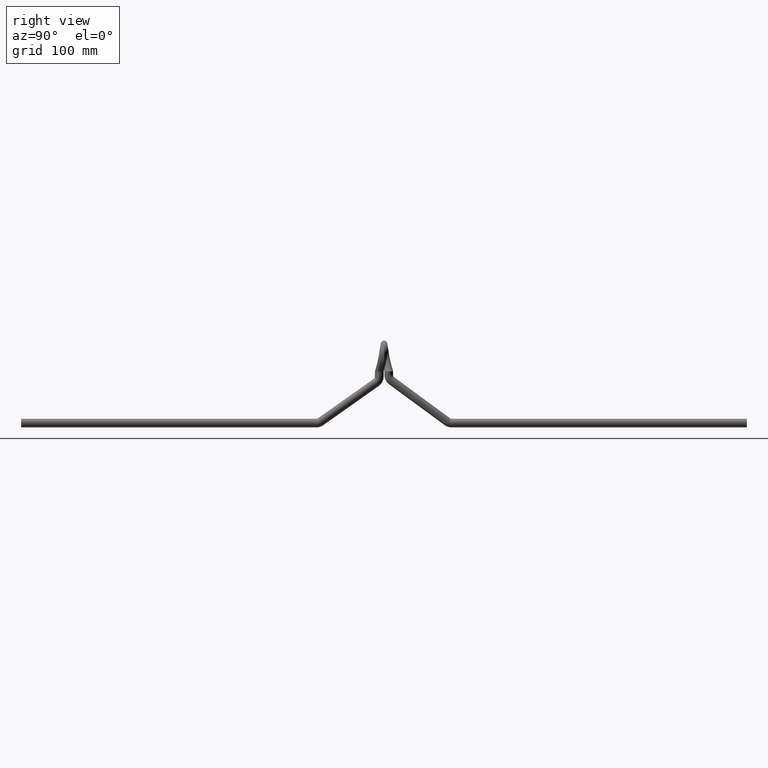
[diagram: clean part render]
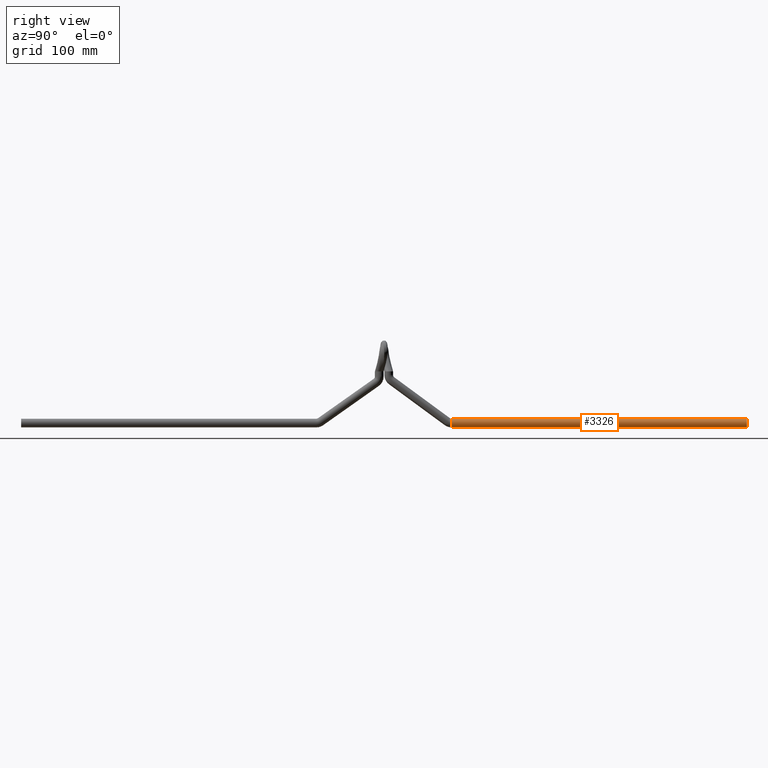
[diagram: same view with one face highlighted and labeled with its STEP entity id]
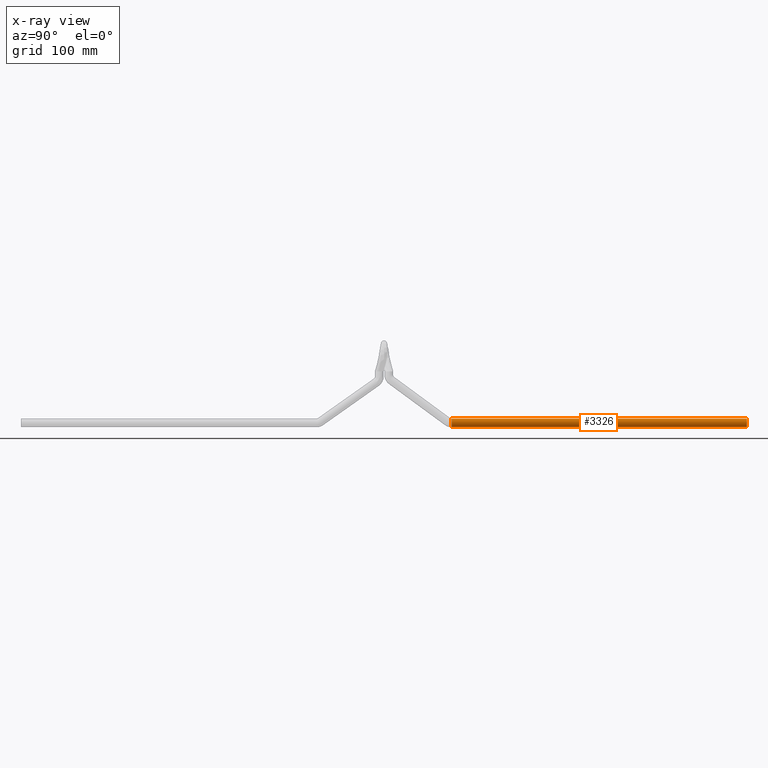
[diagram: x-ray of the same camera — body ghosted, the highlighted face saturated]
A machine part, right view. The second image highlights one B-rep face of the part: STEP entity #3326.
The next image is the same camera in x-ray: the body ghosted, the highlighted face saturated — about 0% of this face is hidden behind the body in this view.
In plain terms, the highlighted cylindrical surface (edge-blend (fillet) strip) has radius 6 mm, axis along (-0, 1, 0).
Its self-contained STEP definition (entity closure, byte-faithful):
#175 = VECTOR ( 'NONE', #689, 1000.000000000000000 ) ;
#689 = DIRECTION ( 'NONE',  ( -0.0000000000000000000, 1.000000000000000000, 1.364650601035499000E-016 ) ) ;
#823 = CARTESIAN_POINT ( 'NONE',  ( 7.347880794884167100E-016, 86.72077615225553900, -77.25000000000007100 ) ) ;
#854 = CARTESIAN_POINT ( 'NONE',  ( 0.0000000000000000000, 493.5000000000000000, -65.25000000000000000 ) ) ;
#918 = CARTESIAN_POINT ( 'NONE',  ( 0.0000000000000000000, 86.72077615225553900, -71.25000000000005700 ) ) ;
#1219 = LINE ( 'NONE', #3043, #4344 ) ;
#1452 = AXIS2_PLACEMENT_3D ( 'NONE', #2881, #7092, #3510 ) ;
#1460 = VERTEX_POINT ( 'NONE', #3354 ) ;
#1546 = DIRECTION ( 'NONE',  ( 0.0000000000000000000, 0.0000000000000000000, 1.000000000000000000 ) ) ;
#1788 = AXIS2_PLACEMENT_3D ( 'NONE', #918, #5837, #1546 ) ;
#1874 = DIRECTION ( 'NONE',  ( 0.0000000000000000000, 1.000000000000000000, 0.0000000000000000000 ) ) ;
#2059 = ORIENTED_EDGE ( 'NONE', *, *, #4292, .T. ) ;
#2223 = CIRCLE ( 'NONE', #6244, 6.000000000000005300 ) ;
#2607 = VERTEX_POINT ( 'NONE', #823 ) ;
#2881 = CARTESIAN_POINT ( 'NONE',  ( 0.0000000000000000000, 493.5000000000000000, -71.25000000000001400 ) ) ;
#2979 = CYLINDRICAL_SURFACE ( 'NONE', #1788, 6.000000000000005300 ) ;
#3043 = CARTESIAN_POINT ( 'NONE',  ( 7.347880794884129600E-016, 86.72077615225553900, -77.25000000000007100 ) ) ;
#3326 = ADVANCED_FACE ( 'NONE', ( #6251 ), #2979, .T. ) ;
#3354 = CARTESIAN_POINT ( 'NONE',  ( 0.0000000000000000000, 86.72077615225553900, -65.25000000000005700 ) ) ;
#3510 = DIRECTION ( 'NONE',  ( 0.0000000000000000000, 0.0000000000000000000, 1.000000000000000000 ) ) ;
#3717 = VERTEX_POINT ( 'NONE', #6648 ) ;
#3721 = EDGE_LOOP ( 'NONE', ( #7489, #2059, #6656, #6962 ) ) ;
#3809 = CARTESIAN_POINT ( 'NONE',  ( 0.0000000000000000000, 86.72077615225553900, -65.25000000000005700 ) ) ;
#4238 = CIRCLE ( 'NONE', #1452, 6.000000000000005300 ) ;
#4292 = EDGE_CURVE ( 'NONE', #2607, #3717, #1219, .T. ) ;
#4344 = VECTOR ( 'NONE', #6108, 1000.000000000000000 ) ;
#4851 = EDGE_CURVE ( 'NONE', #5846, #3717, #4238, .T. ) ;
#5582 = CARTESIAN_POINT ( 'NONE',  ( 0.0000000000000000000, 86.72077615225553900, -71.25000000000005700 ) ) ;
#5837 = DIRECTION ( 'NONE',  ( -0.0000000000000000000, 1.000000000000000000, 1.364650601035499000E-016 ) ) ;
#5846 = VERTEX_POINT ( 'NONE', #854 ) ;
#6108 = DIRECTION ( 'NONE',  ( -0.0000000000000000000, 1.000000000000000000, 1.364650601035499000E-016 ) ) ;
#6196 = DIRECTION ( 'NONE',  ( 0.0000000000000000000, 0.0000000000000000000, 1.000000000000000000 ) ) ;
#6244 = AXIS2_PLACEMENT_3D ( 'NONE', #5582, #1874, #6196 ) ;
#6251 = FACE_OUTER_BOUND ( 'NONE', #3721, .T. ) ;
#6648 = CARTESIAN_POINT ( 'NONE',  ( 7.347880794884134500E-016, 493.5000000000000000, -77.25000000000001400 ) ) ;
#6656 = ORIENTED_EDGE ( 'NONE', *, *, #4851, .F. ) ;
#6734 = LINE ( 'NONE', #3809, #175 ) ;
#6962 = ORIENTED_EDGE ( 'NONE', *, *, #7495, .F. ) ;
#7092 = DIRECTION ( 'NONE',  ( 0.0000000000000000000, 1.000000000000000000, 0.0000000000000000000 ) ) ;
#7431 = EDGE_CURVE ( 'NONE', #1460, #2607, #2223, .T. ) ;
#7489 = ORIENTED_EDGE ( 'NONE', *, *, #7431, .T. ) ;
#7495 = EDGE_CURVE ( 'NONE', #1460, #5846, #6734, .T. ) ;